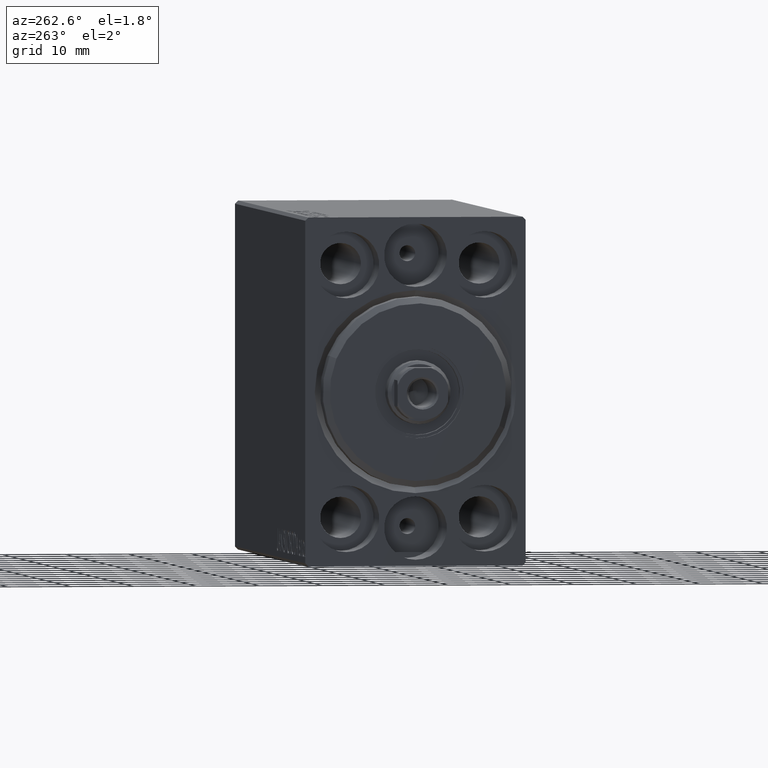
[diagram: clean part render]
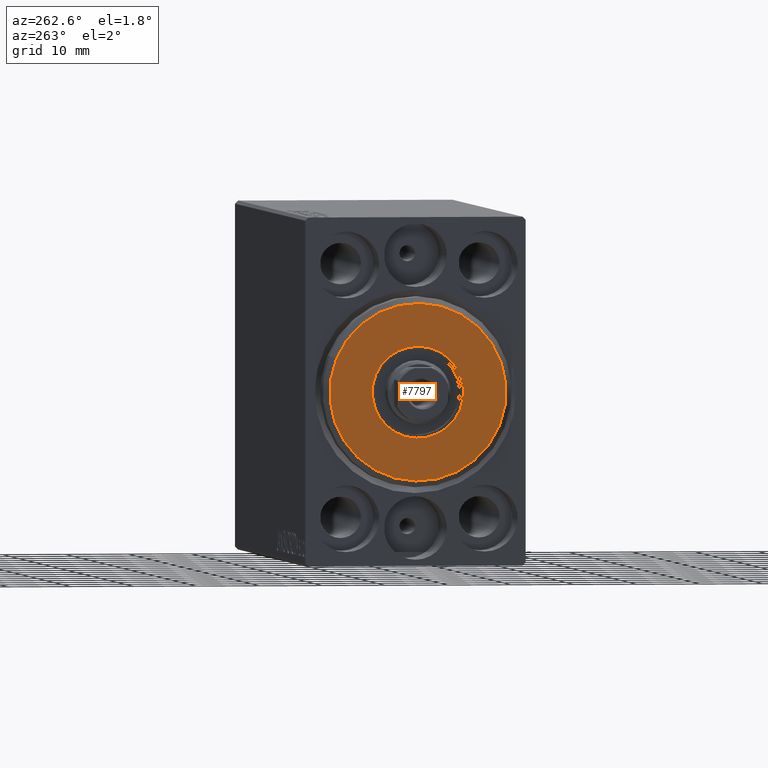
[diagram: same view with one face highlighted and labeled with its STEP entity id]
A machine part, auxiliary view. The second image highlights one B-rep face of the part: STEP entity #7797.
In plain terms, the highlighted planar face has unit normal (-1, 0, 0).
Its self-contained STEP definition (entity closure, byte-faithful):
#247 = PLANE ( 'NONE',  #27168 ) ;
#939 = EDGE_CURVE ( 'NONE', #9985, #43064, #5035, .T. ) ;
#1170 = AXIS2_PLACEMENT_3D ( 'NONE', #39633, #42515, #32312 ) ;
#3781 = FACE_OUTER_BOUND ( 'NONE', #4411, .T. ) ;
#4411 = EDGE_LOOP ( 'NONE', ( #33190, #43049 ) ) ;
#5035 = CIRCLE ( 'NONE', #39008, 7.249999999999999112 ) ;
#6679 = DIRECTION ( 'NONE',  ( 0.000000000000000000, 0.000000000000000000, -1.000000000000000000 ) ) ;
#7797 = ADVANCED_FACE ( 'NONE', ( #3781, #17306 ), #247, .T. ) ;
#8168 = CIRCLE ( 'NONE', #20227, 7.249999999999999112 ) ;
#9238 = EDGE_LOOP ( 'NONE', ( #41774, #39440 ) ) ;
#9391 = VERTEX_POINT ( 'NONE', #13031 ) ;
#9985 = VERTEX_POINT ( 'NONE', #26809 ) ;
#12584 = DIRECTION ( 'NONE',  ( 0.000000000000000000, 0.000000000000000000, -1.000000000000000000 ) ) ;
#13031 = CARTESIAN_POINT ( 'NONE',  ( 3.000000000000000000, 0.000000000000000000, 13.99999999999999645 ) ) ;
#13777 = CARTESIAN_POINT ( 'NONE',  ( 3.000000000000000000, 0.000000000000000000, 0.000000000000000000 ) ) ;
#15038 = DIRECTION ( 'NONE',  ( 1.000000000000000000, -0.000000000000000000, 0.000000000000000000 ) ) ;
#16886 = AXIS2_PLACEMENT_3D ( 'NONE', #34735, #15038, #24557 ) ;
#17151 = EDGE_CURVE ( 'NONE', #43064, #9985, #8168, .T. ) ;
#17306 = FACE_BOUND ( 'NONE', #9238, .T. ) ;
#17681 = CARTESIAN_POINT ( 'NONE',  ( 3.000000000000000000, 0.000000000000000000, 0.000000000000000000 ) ) ;
#19449 = EDGE_CURVE ( 'NONE', #9391, #28727, #40072, .T. ) ;
#19452 = CARTESIAN_POINT ( 'NONE',  ( 3.000000000000000000, 0.000000000000000000, 0.000000000000000000 ) ) ;
#20227 = AXIS2_PLACEMENT_3D ( 'NONE', #17681, #21006, #37837 ) ;
#21006 = DIRECTION ( 'NONE',  ( 1.000000000000000000, 0.000000000000000000, 0.000000000000000000 ) ) ;
#24557 = DIRECTION ( 'NONE',  ( 0.000000000000000000, 0.000000000000000000, -1.000000000000000000 ) ) ;
#26809 = CARTESIAN_POINT ( 'NONE',  ( 3.000000000000000000, 8.878689293818310074E-16, 7.249999999999999112 ) ) ;
#27168 = AXIS2_PLACEMENT_3D ( 'NONE', #13777, #37465, #6679 ) ;
#28727 = VERTEX_POINT ( 'NONE', #35125 ) ;
#29575 = CIRCLE ( 'NONE', #16886, 13.99999999999999645 ) ;
#30605 = EDGE_CURVE ( 'NONE', #28727, #9391, #29575, .T. ) ;
#31905 = CARTESIAN_POINT ( 'NONE',  ( 3.000000000000000000, 0.000000000000000000, -7.249999999999999112 ) ) ;
#32312 = DIRECTION ( 'NONE',  ( 0.000000000000000000, 0.000000000000000000, -1.000000000000000000 ) ) ;
#33190 = ORIENTED_EDGE ( 'NONE', *, *, #19449, .T. ) ;
#34735 = CARTESIAN_POINT ( 'NONE',  ( 3.000000000000000000, 0.000000000000000000, 0.000000000000000000 ) ) ;
#35125 = CARTESIAN_POINT ( 'NONE',  ( 3.000000000000000000, 1.775737858763662015E-15, -13.99999999999999645 ) ) ;
#37465 = DIRECTION ( 'NONE',  ( 1.000000000000000000, -0.000000000000000000, 0.000000000000000000 ) ) ;
#37837 = DIRECTION ( 'NONE',  ( 0.000000000000000000, 0.000000000000000000, -1.000000000000000000 ) ) ;
#39008 = AXIS2_PLACEMENT_3D ( 'NONE', #19452, #42923, #12584 ) ;
#39440 = ORIENTED_EDGE ( 'NONE', *, *, #939, .F. ) ;
#39633 = CARTESIAN_POINT ( 'NONE',  ( 3.000000000000000000, 0.000000000000000000, 0.000000000000000000 ) ) ;
#40072 = CIRCLE ( 'NONE', #1170, 13.99999999999999645 ) ;
#41774 = ORIENTED_EDGE ( 'NONE', *, *, #17151, .F. ) ;
#42515 = DIRECTION ( 'NONE',  ( 1.000000000000000000, -0.000000000000000000, 0.000000000000000000 ) ) ;
#42923 = DIRECTION ( 'NONE',  ( 1.000000000000000000, 0.000000000000000000, 0.000000000000000000 ) ) ;
#43049 = ORIENTED_EDGE ( 'NONE', *, *, #30605, .T. ) ;
#43064 = VERTEX_POINT ( 'NONE', #31905 ) ;